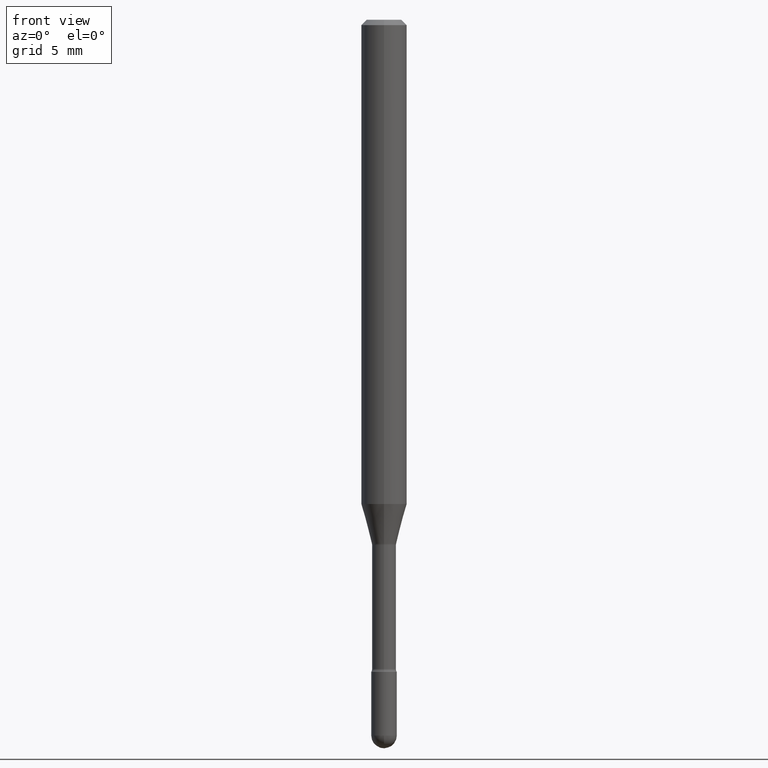
[diagram: clean part render]
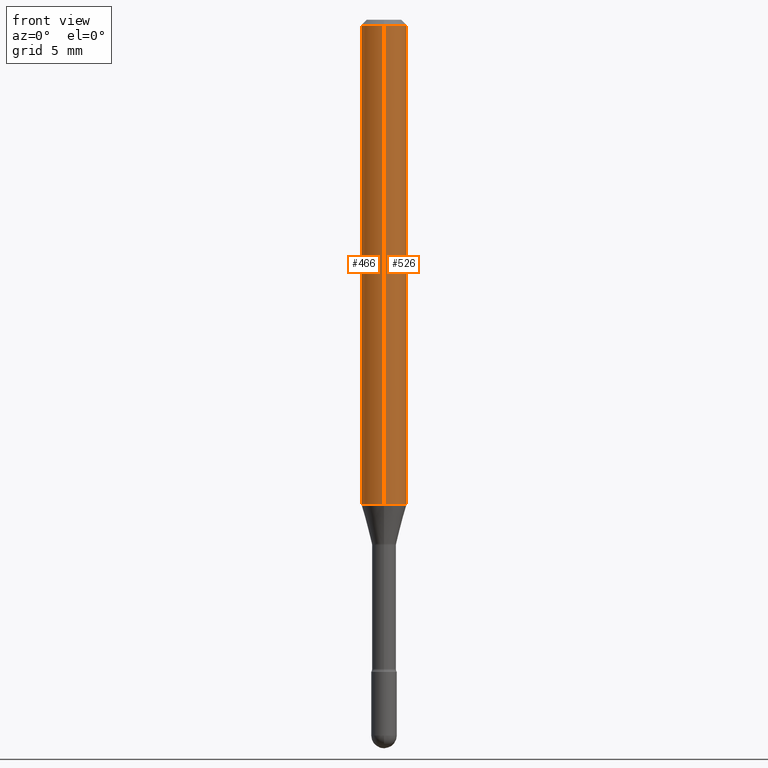
[diagram: same view with one multi-face feature highlighted, each face labeled with its STEP entity id]
A machine part, front view. The highlighted faces form ONE feature: a constant-radius fillet chain: 2 tangent blend faces with common blend radius 1.5875 mm. The faces share edges in the B-rep.
Their STEP definitions:
[1] entity #526 (Cylinder):
#7 = LINE ( 'NONE', #47, #313 ) ;
#20 = CARTESIAN_POINT ( 'NONE',  ( -4.364351673553592768E-16, -0.06250000000000467681, -1.329531296095961101 ) ) ;
#42 = FACE_OUTER_BOUND ( 'NONE', #286, .T. ) ;
#46 = AXIS2_PLACEMENT_3D ( 'NONE', #362, #262, #401 ) ;
#47 = CARTESIAN_POINT ( 'NONE',  ( 4.440892098500625669E-16, 0.06250000000000000000, 2.598605635589149558E-16 ) ) ;
#79 = ORIENTED_EDGE ( 'NONE', *, *, #314, .F. ) ;
#89 = VERTEX_POINT ( 'NONE', #394 ) ;
#98 = DIRECTION ( 'NONE',  ( -2.445521858214685892E-29, 3.491405365317297324E-15, 1.000000000000000000 ) ) ;
#102 = EDGE_CURVE ( 'NONE', #331, #513, #302, .T. ) ;
#105 = ORIENTED_EDGE ( 'NONE', *, *, #442, .F. ) ;
#106 = CARTESIAN_POINT ( 'NONE',  ( -4.364351673553912750E-16, -0.06250000000000005551, -0.01499999999999986587 ) ) ;
#109 = LINE ( 'NONE', #392, #111 ) ;
#111 = VECTOR ( 'NONE', #279, 39.37007874015748143 ) ;
#114 = EDGE_CURVE ( 'NONE', #513, #89, #7, .T. ) ;
#154 = CIRCLE ( 'NONE', #537, 0.06250000000000000000 ) ;
#177 = DIRECTION ( 'NONE',  ( -2.445521858214685892E-29, 3.491405365317297324E-15, 1.000000000000000000 ) ) ;
#196 = ORIENTED_EDGE ( 'NONE', *, *, #102, .T. ) ;
#214 = VERTEX_POINT ( 'NONE', #106 ) ;
#262 = DIRECTION ( 'NONE',  ( -2.445521858214685892E-29, 3.491405365317297324E-15, 1.000000000000000000 ) ) ;
#279 = DIRECTION ( 'NONE',  ( -2.445521858214685892E-29, 3.491405365317297324E-15, 1.000000000000000000 ) ) ;
#286 = EDGE_LOOP ( 'NONE', ( #196, #386, #79, #105 ) ) ;
#302 = CIRCLE ( 'NONE', #441, 0.06250000000000000000 ) ;
#313 = VECTOR ( 'NONE', #177, 39.37007874015748143 ) ;
#314 = EDGE_CURVE ( 'NONE', #214, #89, #154, .T. ) ;
#331 = VERTEX_POINT ( 'NONE', #20 ) ;
#345 = CARTESIAN_POINT ( 'NONE',  ( 3.251397845783175499E-29, -4.641932700546700706E-15, -1.329531296095961546 ) ) ;
#357 = CYLINDRICAL_SURFACE ( 'NONE', #46, 0.06250000000000000000 ) ;
#362 = CARTESIAN_POINT ( 'NONE',  ( -1.169113584055446105E-44, 1.669184350826100908E-30, 4.780733988912460139E-16 ) ) ;
#366 = CARTESIAN_POINT ( 'NONE',  ( 3.668282787322048631E-31, -5.237108047975974089E-17, -0.01500000000000008271 ) ) ;
#377 = CARTESIAN_POINT ( 'NONE',  ( 4.440892098500948609E-16, 0.06249999999999532319, -1.329531296095961768 ) ) ;
#386 = ORIENTED_EDGE ( 'NONE', *, *, #114, .T. ) ;
#392 = CARTESIAN_POINT ( 'NONE',  ( -4.364351673553916201E-16, -0.06250000000000000000, 6.962862342235771706E-16 ) ) ;
#394 = CARTESIAN_POINT ( 'NONE',  ( 4.440892098500952553E-16, 0.06249999999999993755, -0.01500000000000030129 ) ) ;
#401 = DIRECTION ( 'NONE',  ( -6.982962677686265922E-15, -1.000000000000000000, 3.491405365317297324E-15 ) ) ;
#441 = AXIS2_PLACEMENT_3D ( 'NONE', #345, #564, #488 ) ;
#442 = EDGE_CURVE ( 'NONE', #331, #214, #109, .T. ) ;
#488 = DIRECTION ( 'NONE',  ( -6.982962677686265922E-15, -1.000000000000000000, 4.370956789862821150E-15 ) ) ;
#513 = VERTEX_POINT ( 'NONE', #377 ) ;
#526 = ADVANCED_FACE ( 'NONE', ( #42 ), #357, .T. ) ;
#537 = AXIS2_PLACEMENT_3D ( 'NONE', #366, #98, #541 ) ;
#541 = DIRECTION ( 'NONE',  ( -6.982962677686265922E-15, -1.000000000000000000, 3.483106191921935554E-15 ) ) ;
#564 = DIRECTION ( 'NONE',  ( -2.445521858214685892E-29, 3.491405365317297324E-15, 1.000000000000000000 ) ) ;
[2] entity #466 (Cylinder):
#7 = LINE ( 'NONE', #47, #313 ) ;
#20 = CARTESIAN_POINT ( 'NONE',  ( -4.364351673553592768E-16, -0.06250000000000467681, -1.329531296095961101 ) ) ;
#23 = AXIS2_PLACEMENT_3D ( 'NONE', #57, #360, #187 ) ;
#47 = CARTESIAN_POINT ( 'NONE',  ( 4.440892098500625669E-16, 0.06250000000000000000, 2.598605635589149558E-16 ) ) ;
#57 = CARTESIAN_POINT ( 'NONE',  ( 3.668282787322048631E-31, -5.237108047975974089E-17, -0.01500000000000008271 ) ) ;
#58 = AXIS2_PLACEMENT_3D ( 'NONE', #276, #418, #465 ) ;
#89 = VERTEX_POINT ( 'NONE', #394 ) ;
#106 = CARTESIAN_POINT ( 'NONE',  ( -4.364351673553912750E-16, -0.06250000000000005551, -0.01499999999999986587 ) ) ;
#109 = LINE ( 'NONE', #392, #111 ) ;
#111 = VECTOR ( 'NONE', #279, 39.37007874015748143 ) ;
#114 = EDGE_CURVE ( 'NONE', #513, #89, #7, .T. ) ;
#117 = CIRCLE ( 'NONE', #252, 0.06250000000000000000 ) ;
#171 = ORIENTED_EDGE ( 'NONE', *, *, #114, .F. ) ;
#177 = DIRECTION ( 'NONE',  ( -2.445521858214685892E-29, 3.491405365317297324E-15, 1.000000000000000000 ) ) ;
#187 = DIRECTION ( 'NONE',  ( -6.982962677686265922E-15, -1.000000000000000000, 3.483106191921935554E-15 ) ) ;
#214 = VERTEX_POINT ( 'NONE', #106 ) ;
#252 = AXIS2_PLACEMENT_3D ( 'NONE', #301, #456, #492 ) ;
#276 = CARTESIAN_POINT ( 'NONE',  ( -1.169113584055446105E-44, 1.669184350826100908E-30, 4.780733988912460139E-16 ) ) ;
#278 = CIRCLE ( 'NONE', #23, 0.06250000000000000000 ) ;
#279 = DIRECTION ( 'NONE',  ( -2.445521858214685892E-29, 3.491405365317297324E-15, 1.000000000000000000 ) ) ;
#301 = CARTESIAN_POINT ( 'NONE',  ( 3.251397845783175499E-29, -4.641932700546700706E-15, -1.329531296095961546 ) ) ;
#313 = VECTOR ( 'NONE', #177, 39.37007874015748143 ) ;
#328 = EDGE_CURVE ( 'NONE', #89, #214, #278, .T. ) ;
#331 = VERTEX_POINT ( 'NONE', #20 ) ;
#341 = ORIENTED_EDGE ( 'NONE', *, *, #328, .F. ) ;
#342 = FACE_OUTER_BOUND ( 'NONE', #521, .T. ) ;
#350 = ORIENTED_EDGE ( 'NONE', *, *, #442, .T. ) ;
#360 = DIRECTION ( 'NONE',  ( -2.445521858214685892E-29, 3.491405365317297324E-15, 1.000000000000000000 ) ) ;
#361 = EDGE_CURVE ( 'NONE', #513, #331, #117, .T. ) ;
#377 = CARTESIAN_POINT ( 'NONE',  ( 4.440892098500948609E-16, 0.06249999999999532319, -1.329531296095961768 ) ) ;
#392 = CARTESIAN_POINT ( 'NONE',  ( -4.364351673553916201E-16, -0.06250000000000000000, 6.962862342235771706E-16 ) ) ;
#394 = CARTESIAN_POINT ( 'NONE',  ( 4.440892098500952553E-16, 0.06249999999999993755, -0.01500000000000030129 ) ) ;
#418 = DIRECTION ( 'NONE',  ( -2.445521858214685892E-29, 3.491405365317297324E-15, 1.000000000000000000 ) ) ;
#421 = CYLINDRICAL_SURFACE ( 'NONE', #58, 0.06250000000000000000 ) ;
#442 = EDGE_CURVE ( 'NONE', #331, #214, #109, .T. ) ;
#456 = DIRECTION ( 'NONE',  ( -2.445521858214685892E-29, 3.491405365317297324E-15, 1.000000000000000000 ) ) ;
#465 = DIRECTION ( 'NONE',  ( -6.982962677686265922E-15, -1.000000000000000000, 3.491405365317297324E-15 ) ) ;
#466 = ADVANCED_FACE ( 'NONE', ( #342 ), #421, .T. ) ;
#492 = DIRECTION ( 'NONE',  ( -6.982962677686265922E-15, -1.000000000000000000, 4.370956789862821150E-15 ) ) ;
#513 = VERTEX_POINT ( 'NONE', #377 ) ;
#521 = EDGE_LOOP ( 'NONE', ( #171, #529, #350, #341 ) ) ;
#529 = ORIENTED_EDGE ( 'NONE', *, *, #361, .T. ) ;